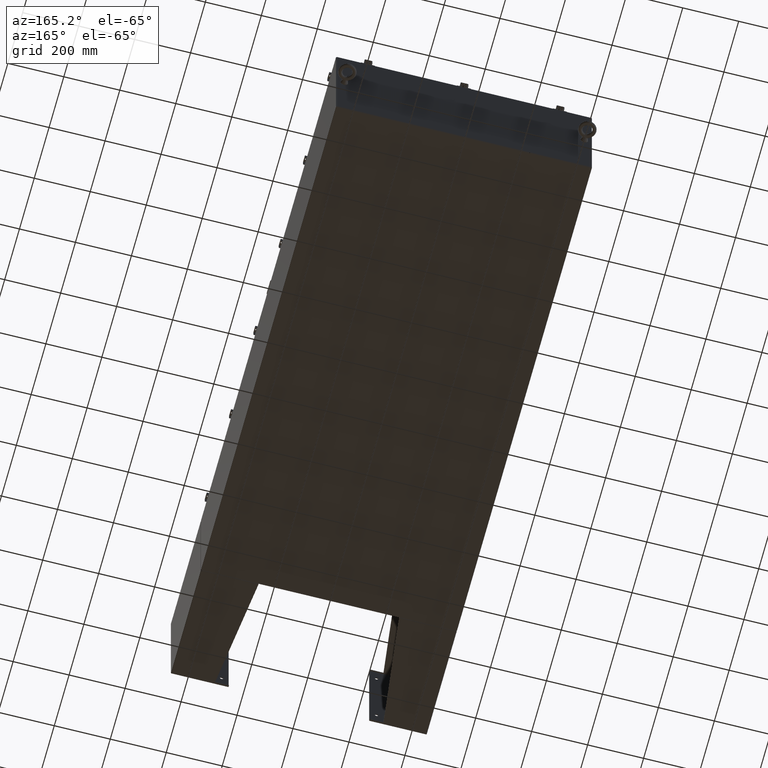
[diagram: clean part render]
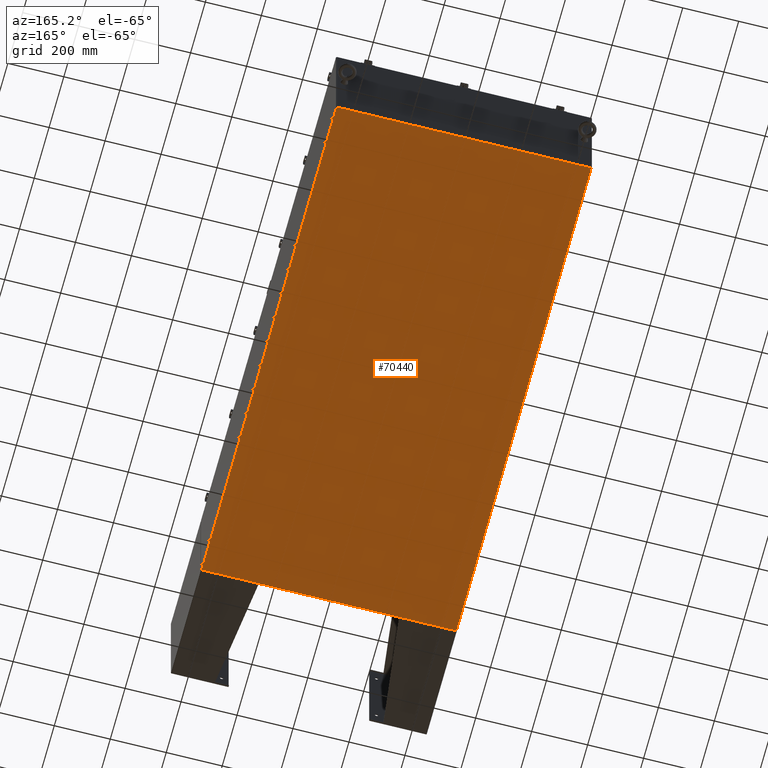
[diagram: same view with one face highlighted and labeled with its STEP entity id]
A machine part, auxiliary view. The second image highlights one B-rep face of the part: STEP entity #70440.
In plain terms, the highlighted planar face has unit normal (0, 0, -1).
Its self-contained STEP definition (entity closure, byte-faithful):
#1354 = VERTEX_POINT ( 'NONE', #17474 ) ;
#1453 = ORIENTED_EDGE ( 'NONE', *, *, #40691, .T. ) ;
#5491 = LINE ( 'NONE', #14657, #19464 ) ;
#7011 = VECTOR ( 'NONE', #50442, 39.37007874015748100 ) ;
#7151 = VERTEX_POINT ( 'NONE', #65705 ) ;
#9440 = VECTOR ( 'NONE', #21100, 39.37007874015748100 ) ;
#10320 = LINE ( 'NONE', #18435, #24438 ) ;
#12714 = CARTESIAN_POINT ( 'NONE',  ( 17.91230000000000500, 35.92530000000000000, -0.07469999999999885100 ) ) ;
#14657 = CARTESIAN_POINT ( 'NONE',  ( -17.99999999999999600, 35.92530000000000000, -0.07470000000000000300 ) ) ;
#15671 = EDGE_CURVE ( 'NONE', #51191, #1354, #5491, .T. ) ;
#17474 = CARTESIAN_POINT ( 'NONE',  ( -17.91229999999999500, 35.92530000000000000, -0.07470000000000000300 ) ) ;
#18435 = CARTESIAN_POINT ( 'NONE',  ( -17.99999999999999600, -35.92529999999999300, -0.07470000000000000300 ) ) ;
#19006 = ORIENTED_EDGE ( 'NONE', *, *, #15671, .F. ) ;
#19195 = FACE_OUTER_BOUND ( 'NONE', #24184, .T. ) ;
#19464 = VECTOR ( 'NONE', #41285, 39.37007874015748100 ) ;
#20877 = CARTESIAN_POINT ( 'NONE',  ( -17.91229999999999500, -35.92530000000000000, -0.07469999999999994700 ) ) ;
#21100 = DIRECTION ( 'NONE',  ( -0.0000000000000000000, -1.000000000000000000, -0.0000000000000000000 ) ) ;
#21603 = DIRECTION ( 'NONE',  ( 0.0000000000000000000, 0.0000000000000000000, -1.000000000000000000 ) ) ;
#22926 = LINE ( 'NONE', #20877, #7011 ) ;
#24184 = EDGE_LOOP ( 'NONE', ( #72376, #1453, #19006, #38835 ) ) ;
#24438 = VECTOR ( 'NONE', #48006, 39.37007874015748100 ) ;
#33532 = PLANE ( 'NONE',  #56234 ) ;
#38835 = ORIENTED_EDGE ( 'NONE', *, *, #56373, .T. ) ;
#39445 = DIRECTION ( 'NONE',  ( -1.000000000000000000, 0.0000000000000000000, -0.0000000000000000000 ) ) ;
#40691 = EDGE_CURVE ( 'NONE', #68281, #1354, #22926, .T. ) ;
#41285 = DIRECTION ( 'NONE',  ( -1.000000000000000000, -0.0000000000000000000, -0.0000000000000000000 ) ) ;
#48006 = DIRECTION ( 'NONE',  ( 1.000000000000000000, 0.0000000000000000000, 0.0000000000000000000 ) ) ;
#50442 = DIRECTION ( 'NONE',  ( -0.0000000000000000000, 1.000000000000000000, -0.0000000000000000000 ) ) ;
#51191 = VERTEX_POINT ( 'NONE', #12714 ) ;
#53990 = CARTESIAN_POINT ( 'NONE',  ( -17.91229999999999500, -35.92530000000000000, -0.07469999999999994700 ) ) ;
#56234 = AXIS2_PLACEMENT_3D ( 'NONE', #63080, #21603, #39445 ) ;
#56373 = EDGE_CURVE ( 'NONE', #51191, #7151, #57002, .T. ) ;
#56645 = EDGE_CURVE ( 'NONE', #68281, #7151, #10320, .T. ) ;
#57002 = LINE ( 'NONE', #68204, #9440 ) ;
#63080 = CARTESIAN_POINT ( 'NONE',  ( 0.0000000000000000000, 0.0000000000000000000, -0.07470000000000000300 ) ) ;
#65705 = CARTESIAN_POINT ( 'NONE',  ( 17.91230000000000500, -35.92529999999999300, -0.07470000000000000300 ) ) ;
#68204 = CARTESIAN_POINT ( 'NONE',  ( 17.91230000000000500, 35.92530000000000700, -0.07469999999999885100 ) ) ;
#68281 = VERTEX_POINT ( 'NONE', #53990 ) ;
#70440 = ADVANCED_FACE ( 'NONE', ( #19195 ), #33532, .T. ) ;
#72376 = ORIENTED_EDGE ( 'NONE', *, *, #56645, .F. ) ;